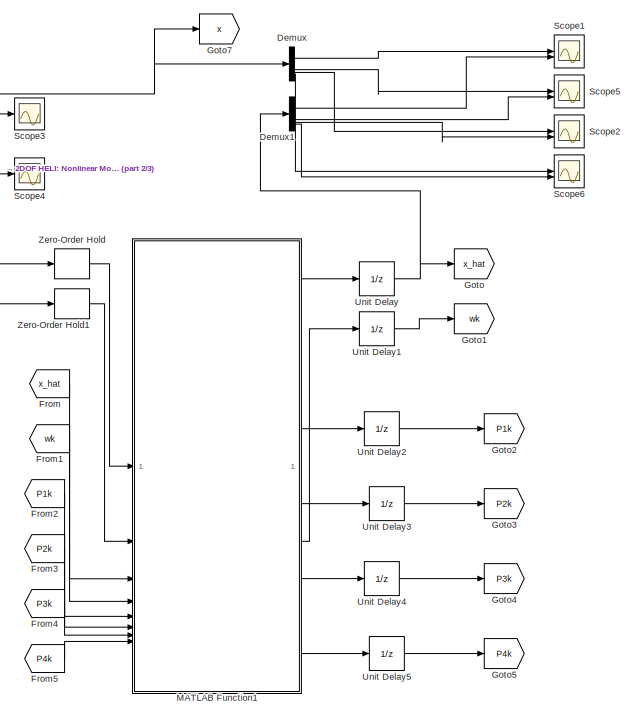
[diagram: root canvas - part 1/3, center side, full height]
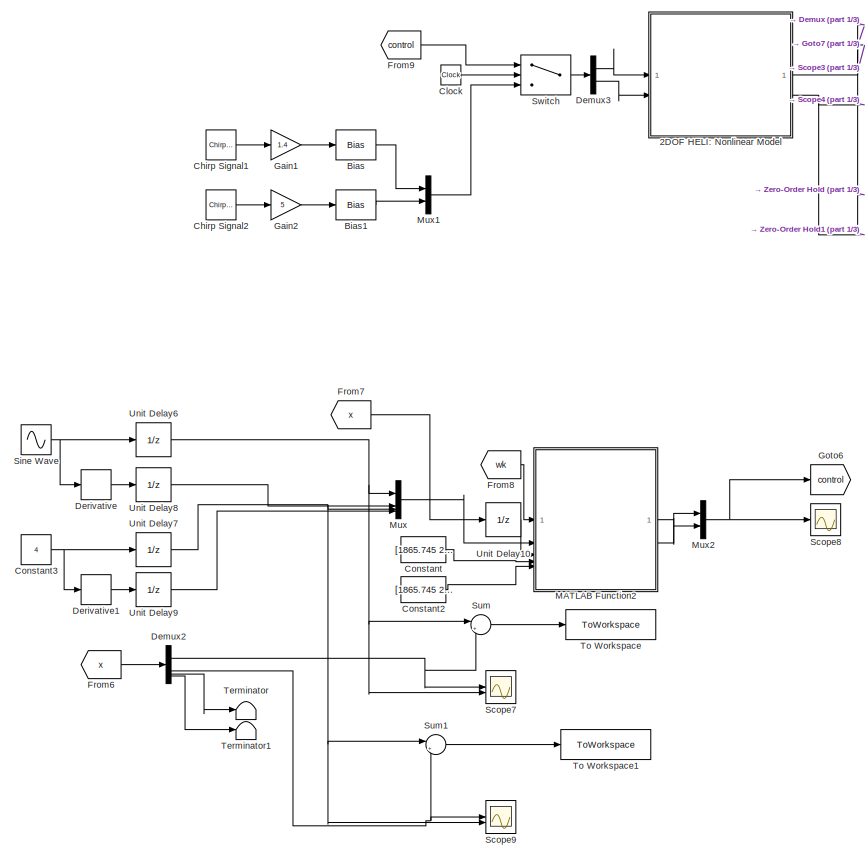
[diagram: root canvas - part 2/3, left side, full height]
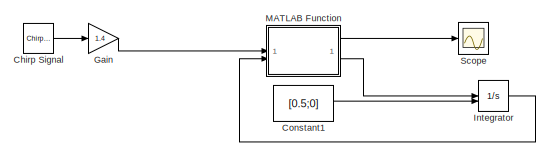
[diagram: root canvas - part 3/3, top right region]
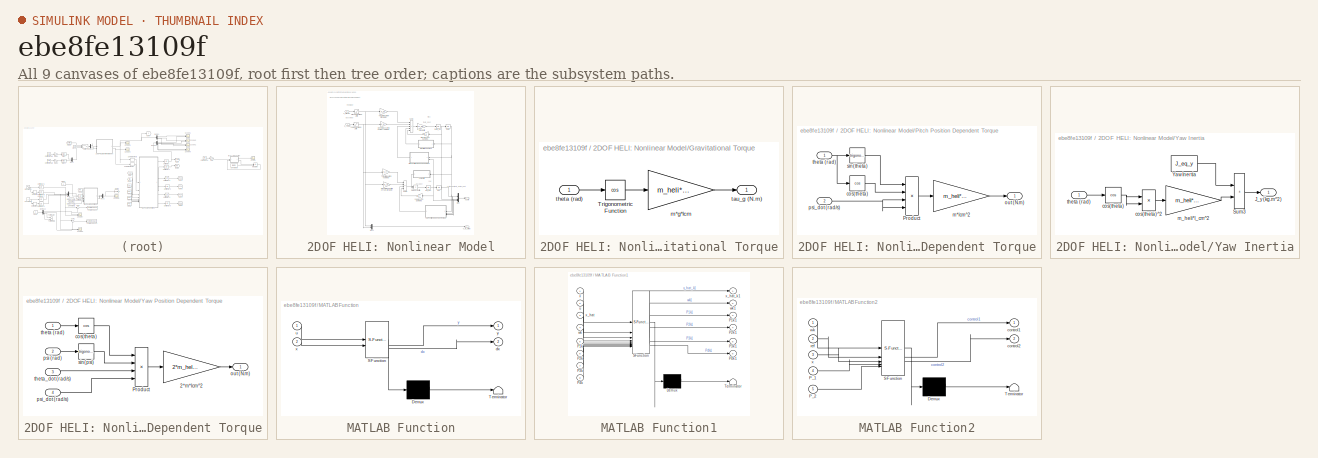
[diagram: thumbnail index - all 9 canvases of the model, root first then tree order]
MODEL slx_ebe8fe13109f
KIND model
CONFIG AbsTol = auto
CONFIG EnableMultiTasking = off
CONFIG FixedStep = 0.001
CONFIG MaxStep = auto
CONFIG MinStep = auto
CONFIG RelTol = 1e-3
CONFIG SampleTimeConstraint = Unconstrained
CONFIG SolverName = FixedStepAuto
CONFIG StartTime = 0.0
CONFIG StopTime = 10
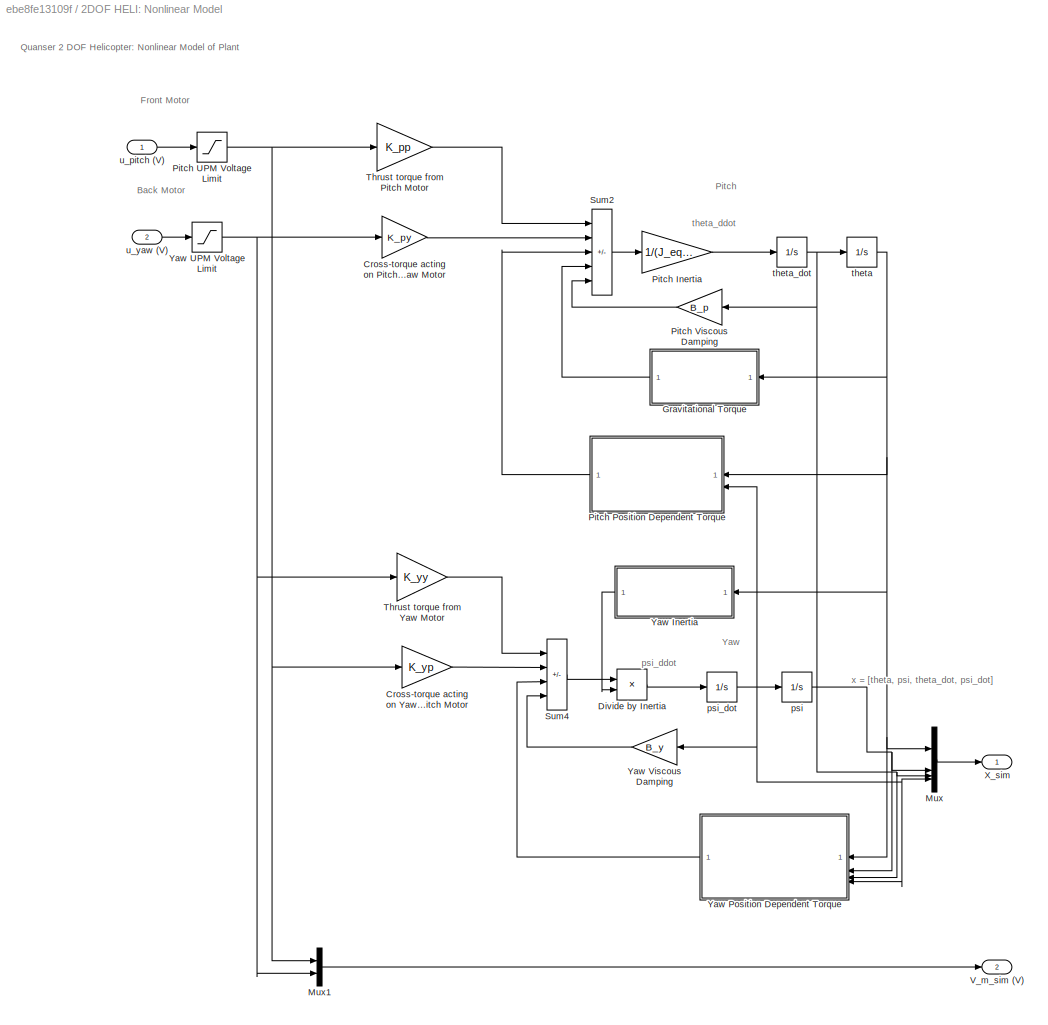
BLOCK [SubSystem] 2DOF HELI: Nonlinear Model
BLOCK [Gain] 2DOF HELI: Nonlinear Model/Cross-torque acting on Pitch from Yaw Motor
  Gain = K_py
BLOCK [Gain] 2DOF HELI: Nonlinear Model/Cross-torque acting on Yaw from Pitch Motor
  Gain = K_yp
BLOCK [Product] 2DOF HELI: Nonlinear Model/Divide by Inertia
  Inputs = */
BLOCK [SubSystem] 2DOF HELI: Nonlinear Model/Gravitational Torque
BLOCK [Trigonometry] 2DOF HELI: Nonlinear Model/Gravitational Torque/Trigonometric Function
  Operator = cos
  OutputSignalType = real
BLOCK [Gain] 2DOF HELI: Nonlinear Model/Gravitational Torque/m*g*lcm
  Gain = m_heli*g*l_cm
BLOCK [Outport] 2DOF HELI: Nonlinear Model/Gravitational Torque/tau_g (N.m)
BLOCK [Inport] 2DOF HELI: Nonlinear Model/Gravitational Torque/theta (rad)
BLOCK [Mux] 2DOF HELI: Nonlinear Model/Mux
  DisplayOption = bar
BLOCK [Mux] 2DOF HELI: Nonlinear Model/Mux1
  DisplayOption = bar
  Inputs = 2
BLOCK [Gain] 2DOF HELI: Nonlinear Model/Pitch Inertia
  Gain = 1/(J_eq_p+m_heli*l_cm^2)
BLOCK [SubSystem] 2DOF HELI: Nonlinear Model/Pitch Position Dependent Torque
  AncestorBlock = heli_2d_lib/2DOF Helicopter:\nNonlinear Model/Yaw Nonlinear Element
BLOCK [Product] 2DOF HELI: Nonlinear Model/Pitch Position Dependent Torque/Product
  Inputs = 4
  RndMeth = Zero
BLOCK [Trigonometry] 2DOF HELI: Nonlinear Model/Pitch Position Dependent Torque/cos(theta)
  Operator = cos
  OutputSignalType = real
BLOCK [Gain] 2DOF HELI: Nonlinear Model/Pitch Position Dependent Torque/m*lcm^2
  Gain = m_heli*l_cm^2
BLOCK [Outport] 2DOF HELI: Nonlinear Model/Pitch Position Dependent Torque/out (N.m)
BLOCK [Inport] 2DOF HELI: Nonlinear Model/Pitch Position Dependent Torque/psi_dot (rad//s)
  Port = 2
BLOCK [Trigonometry] 2DOF HELI: Nonlinear Model/Pitch Position Dependent Torque/sin(theta)
  OutputSignalType = real
BLOCK [Inport] 2DOF HELI: Nonlinear Model/Pitch Position Dependent Torque/theta (rad)
BLOCK [Saturate] 2DOF HELI: Nonlinear Model/Pitch UPM Voltage Limit
  LowerLimit = - VMAX_UPM_P
  UpperLimit = VMAX_UPM_P
BLOCK [Gain] 2DOF HELI: Nonlinear Model/Pitch Viscous Damping
  Gain = B_p
BLOCK [Sum] 2DOF HELI: Nonlinear Model/Sum2
  IconShape = rectangular
  Inputs = ++---
BLOCK [Sum] 2DOF HELI: Nonlinear Model/Sum4
  IconShape = rectangular
  Inputs = +++-
BLOCK [Gain] 2DOF HELI: Nonlinear Model/Thrust torque from Pitch Motor
  Gain = K_pp
BLOCK [Gain] 2DOF HELI: Nonlinear Model/Thrust torque from Yaw Motor
  Gain = K_yy
BLOCK [Outport] 2DOF HELI: Nonlinear Model/V_m_sim (V)
  Port = 2
BLOCK [Outport] 2DOF HELI: Nonlinear Model/X_sim
BLOCK [SubSystem] 2DOF HELI: Nonlinear Model/Yaw Inertia
BLOCK [Outport] 2DOF HELI: Nonlinear Model/Yaw Inertia/J_y (kg.m^2)
BLOCK [Sum] 2DOF HELI: Nonlinear Model/Yaw Inertia/Sum3
  IconShape = rectangular
BLOCK [Constant] 2DOF HELI: Nonlinear Model/Yaw Inertia/Yaw Inertia
  Value = J_eq_y
BLOCK [Trigonometry] 2DOF HELI: Nonlinear Model/Yaw Inertia/cos(theta)
  Operator = cos
  OutputSignalType = real
BLOCK [Product] 2DOF HELI: Nonlinear Model/Yaw Inertia/cos(theta)^2
  RndMeth = Zero
BLOCK [Gain] 2DOF HELI: Nonlinear Model/Yaw Inertia/m_heli*l_cm^2
  Gain = m_heli*l_cm^2
BLOCK [Inport] 2DOF HELI: Nonlinear Model/Yaw Inertia/theta (rad)
BLOCK [SubSystem] 2DOF HELI: Nonlinear Model/Yaw Position Dependent Torque
BLOCK [Gain] 2DOF HELI: Nonlinear Model/Yaw Position Dependent Torque/2*m*lcm^2
  Gain = 2*m_heli*l_cm^2
BLOCK [Product] 2DOF HELI: Nonlinear Model/Yaw Position Dependent Torque/Product
  Inputs = 4
  RndMeth = Zero
BLOCK [Trigonometry] 2DOF HELI: Nonlinear Model/Yaw Position Dependent Torque/cos(theta)
  Operator = cos
  OutputSignalType = real
BLOCK [Outport] 2DOF HELI: Nonlinear Model/Yaw Position Dependent Torque/out (N.m)
BLOCK [Inport] 2DOF HELI: Nonlinear Model/Yaw Position Dependent Torque/psi (rad)
  Port = 2
BLOCK [Inport] 2DOF HELI: Nonlinear Model/Yaw Position Dependent Torque/psi_dot (rad//s)
  Port = 4
BLOCK [Trigonometry] 2DOF HELI: Nonlinear Model/Yaw Position Dependent Torque/sin(psi)
  OutputSignalType = real
BLOCK [Inport] 2DOF HELI: Nonlinear Model/Yaw Position Dependent Torque/theta (rad)
BLOCK [Inport] 2DOF HELI: Nonlinear Model/Yaw Position Dependent Torque/theta_dot (rad//s)
  Port = 3
BLOCK [Saturate] 2DOF HELI: Nonlinear Model/Yaw UPM Voltage Limit
  LowerLimit = - VMAX_UPM_Y
  UpperLimit = VMAX_UPM_Y
BLOCK [Gain] 2DOF HELI: Nonlinear Model/Yaw Viscous Damping
  Gain = B_y
BLOCK [Integrator] 2DOF HELI: Nonlinear Model/psi
BLOCK [Integrator] 2DOF HELI: Nonlinear Model/psi_dot
BLOCK [Integrator] 2DOF HELI: Nonlinear Model/theta
  InitialCondition = theta_0
  LimitOutput = on
  LowerSaturationLimit = -40.5*pi/180
  UpperSaturationLimit = 40.5*pi/180
BLOCK [Integrator] 2DOF HELI: Nonlinear Model/theta_dot
BLOCK [Inport] 2DOF HELI: Nonlinear Model/u_pitch (V)
BLOCK [Inport] 2DOF HELI: Nonlinear Model/u_yaw (V)
  Port = 2
BLOCK [Bias] Bias
  Bias = 11.5
  SaturateOnIntegerOverflow = off
BLOCK [Bias] Bias1
  Bias = -3.5
  SaturateOnIntegerOverflow = off
BLOCK [Reference] Chirp Signal  REF=simulink/Sources/Chirp Signal
  Commented = on
  SourceBlock = simulink/Sources/Chirp Signal
  SourceType = chirp
BLOCK [Reference] Chirp Signal1  REF=simulink/Sources/Chirp Signal
  SourceBlock = simulink/Sources/Chirp Signal
  SourceType = chirp
BLOCK [Reference] Chirp Signal2  REF=simulink/Sources/Chirp Signal
  SourceBlock = simulink/Sources/Chirp Signal
  SourceType = chirp
BLOCK [Clock] Clock
BLOCK [Constant] Constant
  Value = [1865.745 212.083;212.083 29.79]
BLOCK [Constant] Constant1
  Commented = on
  Value = [0.5;0]
BLOCK [Constant] Constant2
  Value = [1865.745 212.083;212.083 29.79]
BLOCK [Constant] Constant3
  Value = 4
BLOCK [Demux] Demux
BLOCK [Demux] Demux1
BLOCK [Demux] Demux2
BLOCK [Demux] Demux3
  Outputs = 2
BLOCK [Derivative] Derivative
BLOCK [Derivative] Derivative1
BLOCK [From] From
  GotoTag = x_hat
BLOCK [From] From1
  GotoTag = wk
BLOCK [From] From2
  GotoTag = P1k
BLOCK [From] From3
  GotoTag = P2k
BLOCK [From] From4
  GotoTag = P3k
BLOCK [From] From5
  GotoTag = P4k
BLOCK [From] From6
  GotoTag = x
BLOCK [From] From7
  GotoTag = x
BLOCK [From] From8
  GotoTag = wk
BLOCK [From] From9
  GotoTag = control
BLOCK [Gain] Gain
  Commented = on
  Gain = 1.4
BLOCK [Gain] Gain1
  Gain = 1.4
BLOCK [Gain] Gain2
  Gain = 5
BLOCK [Goto] Goto
  GotoTag = x_hat
BLOCK [Goto] Goto1
  GotoTag = wk
BLOCK [Goto] Goto2
  GotoTag = P1k
BLOCK [Goto] Goto3
  GotoTag = P2k
BLOCK [Goto] Goto4
  GotoTag = P3k
BLOCK [Goto] Goto5
  GotoTag = P4k
BLOCK [Goto] Goto6
  GotoTag = control
BLOCK [Goto] Goto7
  GotoTag = x
BLOCK [Integrator] Integrator
  Commented = on
  InitialConditionSource = external
BLOCK [SubSystem] MATLAB Function
  Commented = on
  ErrorFcn = Stateflow.Translate.translate
  PermitHierarchicalResolution = ExplicitOnly
  SFBlockType = MATLAB Function
  TreatAsAtomicUnit = on
BLOCK [Demux] MATLAB Function/ Demux 
  Outputs = 1
BLOCK [S-Function] MATLAB Function/ SFunction 
  EnableBusSupport = on
  FunctionName = sf_sfun
  PortCounts = [2 3]
  SFcnIsStateOwnerBlock = off
  SFunctionDeploymentMode = off
  Tag = Stateflow S-Function 2
BLOCK [Terminator] MATLAB Function/ Terminator 
BLOCK [Outport] MATLAB Function/dx
  Port = 2
BLOCK [Inport] MATLAB Function/u
BLOCK [Inport] MATLAB Function/x
  Port = 2
BLOCK [Outport] MATLAB Function/y
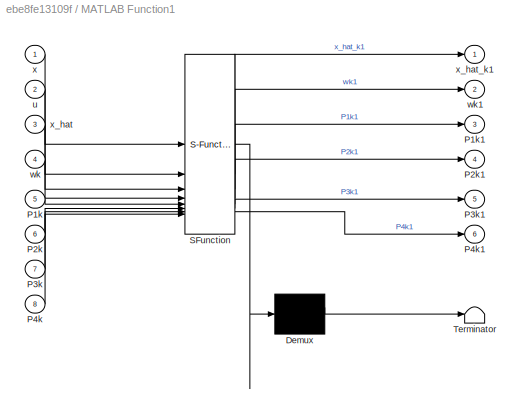
BLOCK [SubSystem] MATLAB Function1
  ErrorFcn = Stateflow.Translate.translate
  PermitHierarchicalResolution = ExplicitOnly
  SFBlockType = MATLAB Function
  TreatAsAtomicUnit = on
BLOCK [Demux] MATLAB Function1/ Demux 
  Outputs = 1
BLOCK [S-Function] MATLAB Function1/ SFunction 
  EnableBusSupport = on
  FunctionName = sf_sfun
  PortCounts = [8 7]
  SFcnIsStateOwnerBlock = off
  SFunctionDeploymentMode = off
  Tag = Stateflow S-Function 1
BLOCK [Terminator] MATLAB Function1/ Terminator 
BLOCK [Inport] MATLAB Function1/P1k
  Port = 5
BLOCK [Outport] MATLAB Function1/P1k1
  Port = 3
BLOCK [Inport] MATLAB Function1/P2k
  Port = 6
BLOCK [Outport] MATLAB Function1/P2k1
  Port = 4
BLOCK [Inport] MATLAB Function1/P3k
  Port = 7
BLOCK [Outport] MATLAB Function1/P3k1
  Port = 5
BLOCK [Inport] MATLAB Function1/P4k
  Port = 8
BLOCK [Outport] MATLAB Function1/P4k1
  Port = 6
BLOCK [Inport] MATLAB Function1/u
  Port = 2
BLOCK [Inport] MATLAB Function1/wk
  Port = 4
BLOCK [Outport] MATLAB Function1/wk1
  Port = 2
BLOCK [Inport] MATLAB Function1/x
BLOCK [Inport] MATLAB Function1/x_hat
  Port = 3
BLOCK [Outport] MATLAB Function1/x_hat_k1
BLOCK [SubSystem] MATLAB Function2
  ErrorFcn = Stateflow.Translate.translate
  PermitHierarchicalResolution = ExplicitOnly
  SFBlockType = MATLAB Function
  TreatAsAtomicUnit = on
BLOCK [Demux] MATLAB Function2/ Demux 
  Outputs = 1
BLOCK [S-Function] MATLAB Function2/ SFunction 
  EnableBusSupport = on
  FunctionName = sf_sfun
  PortCounts = [5 3]
  SFcnIsStateOwnerBlock = off
  SFunctionDeploymentMode = off
  Tag = Stateflow S-Function 3
BLOCK [Terminator] MATLAB Function2/ Terminator 
BLOCK [Inport] MATLAB Function2/P_1
  Port = 4
BLOCK [Inport] MATLAB Function2/P_2
  Port = 5
BLOCK [Outport] MATLAB Function2/control1
BLOCK [Outport] MATLAB Function2/control2
  Port = 2
BLOCK [Inport] MATLAB Function2/ref
  Port = 2
BLOCK [Inport] MATLAB Function2/wk
BLOCK [Inport] MATLAB Function2/x
  Port = 3
BLOCK [Mux] Mux
  DisplayOption = bar
BLOCK [Mux] Mux1
  DisplayOption = bar
  Inputs = 2
BLOCK [Mux] Mux2
  DisplayOption = bar
  Inputs = 2
BLOCK [Scope] Scope
  Commented = on
  Floating = off
  NumInputPorts = 1
  ScopeSpecificationString = Simulink.scopes.TimeScopeBlockCfg('CurrentConfiguration', extmgr.ConfigurationSet(extmgr.Configuration('Core','General UI',true),extmgr.Configuration('Core','Source UI',true),extmgr.Configuration('Sources','WiredSimulink',true),extmgr.Configuration('Visuals','Time Domain',true,'SerializedDisplays',{struct('MinYLimReal','-0.30166','MaxYLimReal','0.37994','YLabelReal','','MinYLimMag','0.00000','MaxY...<+1426ch>
BLOCK [Scope] Scope1
  Floating = off
  NumInputPorts = 2
  ScopeSpecificationString = Simulink.scopes.TimeScopeBlockCfg('CurrentConfiguration', extmgr.ConfigurationSet(extmgr.Configuration('Core','General UI',true),extmgr.Configuration('Core','Source UI',true),extmgr.Configuration('Sources','WiredSimulink',true,'DataLoggingVariableName','ScopeData1'),extmgr.Configuration('Visuals','Time Domain',true,'SerializedDisplays',{struct('MinYLimReal','-1.13272','MaxYLimReal','0.12586','YLab...<+1499ch>
BLOCK [Scope] Scope2
  Floating = off
  NumInputPorts = 2
  ScopeSpecificationString = Simulink.scopes.TimeScopeBlockCfg('CurrentConfiguration', extmgr.ConfigurationSet(extmgr.Configuration('Core','General UI',true),extmgr.Configuration('Core','Source UI',true),extmgr.Configuration('Sources','WiredSimulink',true,'DataLoggingVariableName','ScopeData2'),extmgr.Configuration('Visuals','Time Domain',true,'SerializedDisplays',{struct('MinYLimReal','-2.01215','MaxYLimReal','2.02796','YLab...<+1539ch>
BLOCK [Scope] Scope3
  Floating = off
  NumInputPorts = 1
  ScopeSpecificationString = Simulink.scopes.TimeScopeBlockCfg('CurrentConfiguration', extmgr.ConfigurationSet(extmgr.Configuration('Core','General UI',true),extmgr.Configuration('Core','Source UI',true),extmgr.Configuration('Sources','WiredSimulink',true,'DataLoggingVariableName','ScopeData1'),extmgr.Configuration('Visuals','Time Domain',true,'SerializedDisplays',{struct('MinYLimReal','-2.35436','MaxYLimReal','5.10786','YLab...<+1577ch>
BLOCK [Scope] Scope4
  Floating = off
  NumInputPorts = 1
  ScopeSpecificationString = Simulink.scopes.TimeScopeBlockCfg('CurrentConfiguration', extmgr.ConfigurationSet(extmgr.Configuration('Core','General UI',true),extmgr.Configuration('Core','Source UI',true),extmgr.Configuration('Sources','WiredSimulink',true,'DataLoggingVariableName','ScopeData2'),extmgr.Configuration('Visuals','Time Domain',true,'SerializedDisplays',{struct('MinYLimReal','-5.8125','MaxYLimReal','17.3125','YLabe...<+1509ch>
BLOCK [Scope] Scope5
  Floating = off
  NumInputPorts = 2
  ScopeSpecificationString = Simulink.scopes.TimeScopeBlockCfg('CurrentConfiguration', extmgr.ConfigurationSet(extmgr.Configuration('Core','General UI',true),extmgr.Configuration('Core','Source UI',true),extmgr.Configuration('Sources','WiredSimulink',true,'DataLoggingVariableName','ScopeData3'),extmgr.Configuration('Visuals','Time Domain',true,'SerializedDisplays',{struct('MinYLimReal','-0.54521','MaxYLimReal','4.90685','YLab...<+1497ch>
BLOCK [Scope] Scope6
  Floating = off
  NumInputPorts = 2
  ScopeSpecificationString = Simulink.scopes.TimeScopeBlockCfg('CurrentConfiguration', extmgr.ConfigurationSet(extmgr.Configuration('Core','General UI',true),extmgr.Configuration('Core','Source UI',true),extmgr.Configuration('Sources','WiredSimulink',true,'DataLoggingVariableName','ScopeData4'),extmgr.Configuration('Visuals','Time Domain',true,'SerializedDisplays',{struct('MinYLimReal','-1.45251','MaxYLimReal','1.4612','YLabe...<+1535ch>
BLOCK [Scope] Scope7
  Floating = off
  NumInputPorts = 2
  ScopeSpecificationString = Simulink.scopes.TimeScopeBlockCfg('CurrentConfiguration', extmgr.ConfigurationSet(extmgr.Configuration('Core','General UI',true),extmgr.Configuration('Core','Source UI',true),extmgr.Configuration('Sources','WiredSimulink',true,'DataLoggingVariableName','ScopeData1'),extmgr.Configuration('Visuals','Time Domain',true,'SerializedDisplays',{struct('MinYLimReal','-0.85772','MaxYLimReal','0.65086','YLab...<+1470ch>
BLOCK [Scope] Scope8
  Floating = off
  NumInputPorts = 1
  ScopeSpecificationString = Simulink.scopes.TimeScopeBlockCfg('CurrentConfiguration', extmgr.ConfigurationSet(extmgr.Configuration('Core','General UI',true),extmgr.Configuration('Core','Source UI',true),extmgr.Configuration('Sources','WiredSimulink',true,'DataLoggingVariableName','ScopeData2'),extmgr.Configuration('Visuals','Time Domain',true,'SerializedDisplays',{struct('MinYLimReal','-6.48045','MaxYLimReal','31.78389','YLa...<+1505ch>
BLOCK [Scope] Scope9
  Floating = off
  NumInputPorts = 2
  ScopeSpecificationString = Simulink.scopes.TimeScopeBlockCfg('CurrentConfiguration', extmgr.ConfigurationSet(extmgr.Configuration('Core','General UI',true),extmgr.Configuration('Core','Source UI',true),extmgr.Configuration('Sources','WiredSimulink',true,'DataLoggingVariableName','ScopeData1'),extmgr.Configuration('Visuals','Time Domain',true,'SerializedDisplays',{struct('MinYLimReal','-0.54521','MaxYLimReal','4.90685','YLab...<+1470ch>
BLOCK [Sin] Sine Wave
  Amplitude = 0.5
  SampleTime = 0
BLOCK [Sum] Sum
  Inputs = |+-
BLOCK [Sum] Sum1
  Inputs = |+-
BLOCK [Switch] Switch
  Criteria = u2 > Threshold
  InputSameDT = off
  SaturateOnIntegerOverflow = off
  Threshold = 0.1
BLOCK [Terminator] Terminator
BLOCK [Terminator] Terminator1
BLOCK [ToWorkspace] To Workspace
  FixptAsFi = on
  MaxDataPoints = inf
  SampleTime = -1
  SaveFormat = Timeseries
  VariableName = track_error_pitch
BLOCK [ToWorkspace] To Workspace1
  FixptAsFi = on
  MaxDataPoints = inf
  SampleTime = -1
  SaveFormat = Timeseries
  VariableName = track_error_yaw
BLOCK [UnitDelay] Unit Delay
  HasFrameUpgradeWarning = on
  SampleTime = -1
BLOCK [UnitDelay] Unit Delay1
  HasFrameUpgradeWarning = on
  InitialCondition = [rand(1,8)]
  SampleTime = -1
BLOCK [UnitDelay] Unit Delay10
  HasFrameUpgradeWarning = on
  InitialCondition = [0;0;0;0]
  SampleTime = -1
BLOCK [UnitDelay] Unit Delay2
  HasFrameUpgradeWarning = on
  InitialCondition = eye(2)*50000
  SampleTime = -1
BLOCK [UnitDelay] Unit Delay3
  HasFrameUpgradeWarning = on
  InitialCondition = eye(2)*50000
  SampleTime = -1
BLOCK [UnitDelay] Unit Delay4
  HasFrameUpgradeWarning = on
  InitialCondition = eye(2)*50000
  SampleTime = -1
BLOCK [UnitDelay] Unit Delay5
  HasFrameUpgradeWarning = on
  InitialCondition = eye(2)*50000
  SampleTime = -1
BLOCK [UnitDelay] Unit Delay6
  HasFrameUpgradeWarning = on
  SampleTime = -1
BLOCK [UnitDelay] Unit Delay7
  HasFrameUpgradeWarning = on
  SampleTime = -1
BLOCK [UnitDelay] Unit Delay8
  HasFrameUpgradeWarning = on
  SampleTime = -1
BLOCK [UnitDelay] Unit Delay9
  HasFrameUpgradeWarning = on
  SampleTime = -1
BLOCK [ZeroOrderHold] Zero-Order Hold
  SampleTime = -1
BLOCK [ZeroOrderHold] Zero-Order Hold1
  SampleTime = -1
ANNOTATION 2DOF HELI: Nonlinear Model: Back Motor
ANNOTATION 2DOF HELI: Nonlinear Model: Front Motor
ANNOTATION 2DOF HELI: Nonlinear Model: Pitch
ANNOTATION 2DOF HELI: Nonlinear Model: Quanser 2 DOF Helicopter: Nonlinear Model of Plant
ANNOTATION 2DOF HELI: Nonlinear Model: Yaw
ANNOTATION 2DOF HELI: Nonlinear Model: psi_ddot
ANNOTATION 2DOF HELI: Nonlinear Model: theta_ddot
ANNOTATION 2DOF HELI: Nonlinear Model: x = [theta, psi, theta_dot, psi_dot]
LINE 2DOF HELI: Nonlinear Model/Cross-torque acting on Pitch from Yaw Motor:1 -> 2DOF HELI: Nonlinear Model/Sum2:2
LINE 2DOF HELI: Nonlinear Model/Cross-torque acting on Yaw from Pitch Motor:1 -> 2DOF HELI: Nonlinear Model/Sum4:2
LINE 2DOF HELI: Nonlinear Model/Divide by Inertia:1 -> 2DOF HELI: Nonlinear Model/psi_dot:1
LINE 2DOF HELI: Nonlinear Model/Gravitational Torque/Trigonometric Function:1 -> 2DOF HELI: Nonlinear Model/Gravitational Torque/m*g*lcm:1
LINE 2DOF HELI: Nonlinear Model/Gravitational Torque/m*g*lcm:1 -> 2DOF HELI: Nonlinear Model/Gravitational Torque/tau_g (N.m):1
LINE 2DOF HELI: Nonlinear Model/Gravitational Torque/theta (rad):1 -> 2DOF HELI: Nonlinear Model/Gravitational Torque/Trigonometric Function:1
LINE 2DOF HELI: Nonlinear Model/Gravitational Torque:1 -> 2DOF HELI: Nonlinear Model/Sum2:4
LINE 2DOF HELI: Nonlinear Model/Mux1:1 -> 2DOF HELI: Nonlinear Model/V_m_sim (V):1
LINE 2DOF HELI: Nonlinear Model/Mux:1 -> 2DOF HELI: Nonlinear Model/X_sim:1
LINE 2DOF HELI: Nonlinear Model/Pitch Inertia:1 -> 2DOF HELI: Nonlinear Model/theta_dot:1
LINE 2DOF HELI: Nonlinear Model/Pitch Position Dependent Torque:1 -> 2DOF HELI: Nonlinear Model/Sum2:3
NET 2DOF HELI: Nonlinear Model/Pitch UPM Voltage Limit:1 -> 2DOF HELI: Nonlinear Model/Cross-torque acting on Yaw from Pitch Motor:1, 2DOF HELI: Nonlinear Model/Mux1:1, 2DOF HELI: Nonlinear Model/Thrust torque from Pitch Motor:1
LINE 2DOF HELI: Nonlinear Model/Pitch Viscous Damping:1 -> 2DOF HELI: Nonlinear Model/Sum2:5
LINE 2DOF HELI: Nonlinear Model/Sum2:1 -> 2DOF HELI: Nonlinear Model/Pitch Inertia:1
LINE 2DOF HELI: Nonlinear Model/Sum4:1 -> 2DOF HELI: Nonlinear Model/Divide by Inertia:1
LINE 2DOF HELI: Nonlinear Model/Thrust torque from Pitch Motor:1 -> 2DOF HELI: Nonlinear Model/Sum2:1
LINE 2DOF HELI: Nonlinear Model/Thrust torque from Yaw Motor:1 -> 2DOF HELI: Nonlinear Model/Sum4:1
LINE 2DOF HELI: Nonlinear Model/Yaw Inertia/Sum3:1 -> 2DOF HELI: Nonlinear Model/Yaw Inertia/J_y (kg.m^2):1
LINE 2DOF HELI: Nonlinear Model/Yaw Inertia/Yaw Inertia:1 -> 2DOF HELI: Nonlinear Model/Yaw Inertia/Sum3:1
NET 2DOF HELI: Nonlinear Model/Yaw Inertia/cos(theta):1 -> 2DOF HELI: Nonlinear Model/Yaw Inertia/cos(theta)^2:1, 2DOF HELI: Nonlinear Model/Yaw Inertia/cos(theta)^2:2
LINE 2DOF HELI: Nonlinear Model/Yaw Inertia/cos(theta)^2:1 -> 2DOF HELI: Nonlinear Model/Yaw Inertia/m_heli*l_cm^2:1
LINE 2DOF HELI: Nonlinear Model/Yaw Inertia/m_heli*l_cm^2:1 -> 2DOF HELI: Nonlinear Model/Yaw Inertia/Sum3:2
LINE 2DOF HELI: Nonlinear Model/Yaw Inertia/theta (rad):1 -> 2DOF HELI: Nonlinear Model/Yaw Inertia/cos(theta):1
LINE 2DOF HELI: Nonlinear Model/Yaw Inertia:1 -> 2DOF HELI: Nonlinear Model/Divide by Inertia:2
LINE 2DOF HELI: Nonlinear Model/Yaw Position Dependent Torque/2*m*lcm^2:1 -> 2DOF HELI: Nonlinear Model/Yaw Position Dependent Torque/out (N.m):1
LINE 2DOF HELI: Nonlinear Model/Yaw Position Dependent Torque/Product:1 -> 2DOF HELI: Nonlinear Model/Yaw Position Dependent Torque/2*m*lcm^2:1
LINE 2DOF HELI: Nonlinear Model/Yaw Position Dependent Torque/cos(theta):1 -> 2DOF HELI: Nonlinear Model/Yaw Position Dependent Torque/Product:1
LINE 2DOF HELI: Nonlinear Model/Yaw Position Dependent Torque/psi (rad):1 -> 2DOF HELI: Nonlinear Model/Yaw Position Dependent Torque/sin(psi):1
LINE 2DOF HELI: Nonlinear Model/Yaw Position Dependent Torque/psi_dot (rad//s):1 -> 2DOF HELI: Nonlinear Model/Yaw Position Dependent Torque/Product:4
LINE 2DOF HELI: Nonlinear Model/Yaw Position Dependent Torque/sin(psi):1 -> 2DOF HELI: Nonlinear Model/Yaw Position Dependent Torque/Product:2
LINE 2DOF HELI: Nonlinear Model/Yaw Position Dependent Torque/theta (rad):1 -> 2DOF HELI: Nonlinear Model/Yaw Position Dependent Torque/cos(theta):1
LINE 2DOF HELI: Nonlinear Model/Yaw Position Dependent Torque/theta_dot (rad//s):1 -> 2DOF HELI: Nonlinear Model/Yaw Position Dependent Torque/Product:3
LINE 2DOF HELI: Nonlinear Model/Yaw Position Dependent Torque:1 -> 2DOF HELI: Nonlinear Model/Sum4:3
NET 2DOF HELI: Nonlinear Model/Yaw UPM Voltage Limit:1 -> 2DOF HELI: Nonlinear Model/Cross-torque acting on Pitch from Yaw Motor:1, 2DOF HELI: Nonlinear Model/Mux1:2, 2DOF HELI: Nonlinear Model/Thrust torque from Yaw Motor:1
LINE 2DOF HELI: Nonlinear Model/Yaw Viscous Damping:1 -> 2DOF HELI: Nonlinear Model/Sum4:4
NET 2DOF HELI: Nonlinear Model/psi:1 -> 2DOF HELI: Nonlinear Model/Mux:2, 2DOF HELI: Nonlinear Model/Yaw Position Dependent Torque:2
NET 2DOF HELI: Nonlinear Model/psi_dot:1 -> 2DOF HELI: Nonlinear Model/Mux:4, 2DOF HELI: Nonlinear Model/Pitch Position Dependent Torque:2, 2DOF HELI: Nonlinear Model/Yaw Position Dependent Torque:4, 2DOF HELI: Nonlinear Model/Yaw Viscous Damping:1, 2DOF HELI: Nonlinear Model/psi:1
NET 2DOF HELI: Nonlinear Model/theta:1 -> 2DOF HELI: Nonlinear Model/Gravitational Torque:1, 2DOF HELI: Nonlinear Model/Mux:1, 2DOF HELI: Nonlinear Model/Pitch Position Dependent Torque:1, 2DOF HELI: Nonlinear Model/Yaw Inertia:1, 2DOF HELI: Nonlinear Model/Yaw Position Dependent Torque:1
NET 2DOF HELI: Nonlinear Model/theta_dot:1 -> 2DOF HELI: Nonlinear Model/Mux:3, 2DOF HELI: Nonlinear Model/Pitch Viscous Damping:1, 2DOF HELI: Nonlinear Model/Yaw Position Dependent Torque:3, 2DOF HELI: Nonlinear Model/theta:1
LINE 2DOF HELI: Nonlinear Model/u_pitch (V):1 -> 2DOF HELI: Nonlinear Model/Pitch UPM Voltage Limit:1
LINE 2DOF HELI: Nonlinear Model/u_yaw (V):1 -> 2DOF HELI: Nonlinear Model/Yaw UPM Voltage Limit:1
NET 2DOF HELI: Nonlinear Model:1 -> Demux:1, Goto7:1, Scope3:1, Zero-Order Hold:1
NET 2DOF HELI: Nonlinear Model:2 -> Scope4:1, Zero-Order Hold1:1
LINE Bias1:1 -> Mux1:2
LINE Bias:1 -> Mux1:1
LINE Chirp Signal1:1 -> Gain1:1
LINE Chirp Signal2:1 -> Gain2:1
LINE Chirp Signal:1 -> Gain:1
LINE Clock:1 -> Switch:2
LINE Constant1:1 -> Integrator:2
LINE Constant2:1 -> MATLAB Function2:5
NET Constant3:1 -> Derivative1:1, Unit Delay7:1
LINE Constant:1 -> MATLAB Function2:4
LINE Demux1:1 -> Scope1:2
LINE Demux1:2 -> Scope5:2
LINE Demux1:3 -> Scope2:2
LINE Demux1:4 -> Scope6:2
NET Demux2:1 -> Scope7:1, Sum:2
NET Demux2:2 -> Scope9:1, Sum1:2
LINE Demux2:3 -> Terminator:1
LINE Demux2:4 -> Terminator1:1
LINE Demux3:1 -> 2DOF HELI: Nonlinear Model:1
LINE Demux3:2 -> 2DOF HELI: Nonlinear Model:2
LINE Demux:1 -> Scope1:1
LINE Demux:2 -> Scope5:1
LINE Demux:3 -> Scope2:1
LINE Demux:4 -> Scope6:1
LINE Derivative1:1 -> Unit Delay9:1
LINE Derivative:1 -> Unit Delay8:1
LINE From1:1 -> MATLAB Function1:4
LINE From2:1 -> MATLAB Function1:5
LINE From3:1 -> MATLAB Function1:6
LINE From4:1 -> MATLAB Function1:7
LINE From5:1 -> MATLAB Function1:8
LINE From6:1 -> Demux2:1
LINE From7:1 -> Unit Delay10:1
LINE From8:1 -> MATLAB Function2:1
LINE From9:1 -> Switch:1
LINE From:1 -> MATLAB Function1:3
LINE Gain1:1 -> Bias:1
LINE Gain2:1 -> Bias1:1
LINE Gain:1 -> MATLAB Function:1
LINE Integrator:1 -> MATLAB Function:2
LINE MATLAB Function1:1 -> Unit Delay:1
LINE MATLAB Function1:2 -> Unit Delay1:1
LINE MATLAB Function1:3 -> Unit Delay2:1
LINE MATLAB Function1:4 -> Unit Delay3:1
LINE MATLAB Function1:5 -> Unit Delay4:1
LINE MATLAB Function1:6 -> Unit Delay5:1
LINE MATLAB Function2:1 -> Mux2:1
LINE MATLAB Function2:2 -> Mux2:2
LINE MATLAB Function:1 -> Scope:1
LINE MATLAB Function:2 -> Integrator:1
LINE Mux1:1 -> Switch:3
NET Mux2:1 -> Goto6:1, Scope8:1
LINE Mux:1 -> MATLAB Function2:2
NET Sine Wave:1 -> Derivative:1, Unit Delay6:1
LINE Sum1:1 -> To Workspace1:1
LINE Sum:1 -> To Workspace:1
LINE Switch:1 -> Demux3:1
LINE Unit Delay10:1 -> MATLAB Function2:3
LINE Unit Delay1:1 -> Goto1:1
LINE Unit Delay2:1 -> Goto2:1
LINE Unit Delay3:1 -> Goto3:1
LINE Unit Delay4:1 -> Goto4:1
LINE Unit Delay5:1 -> Goto5:1
NET Unit Delay6:1 -> Mux:1, Scope7:2, Sum:1
NET Unit Delay7:1 -> Mux:3, Scope9:2, Sum1:1
LINE Unit Delay8:1 -> Mux:2
LINE Unit Delay9:1 -> Mux:4
NET Unit Delay:1 -> Demux1:1, Goto:1
LINE Zero-Order Hold1:1 -> MATLAB Function1:2
LINE Zero-Order Hold:1 -> MATLAB Function1:1
note: NET lines group one-source signal fan-out (src -> all destinations, sorted); 1:1 wires keep LINE
CHART MATLAB Function1 states=1 transitions=1
  STATE_LABEL 'eML_blk_kernel()'
  STATE_LABEL 'SCRIPT:\nfunction [x_hat_k1,wk1,P1k1,P2k1,P3k1,P4k1] = fcn(x,u,x_hat,wk,P1k,P2k,P3k,P4k)\n\n%% Constant weights\n\nw_1=0.15;\n%w_2=0.1; %Revisar que valores podemos usar\n\n\n%% Neural states\n\nx_hat_k_1 = wk(1)*tanh(x(3)) +  wk(2)*tanh(x(1));\nx_hat_k_2 = wk(3)*tanh(x(4)) +  wk(4)*tanh(x(2));\n\nx_hat_k_3 = wk(5)*tanh(x(3)) +  wk(6)*tanh(x(1)) + w_1*u(1);\nx_hat_k_4 = wk(7)*tanh(x(4)) +  wk(8)*tanh(x(2)) + w_1...<+783ch>'
CHART MATLAB Function states=1 transitions=1
  STATE_LABEL 'eML_blk_kernel()'
  STATE_LABEL 'SCRIPT:\nfunction [y, dx] = fcn(u, x)\ng = 9.81;  \nl = 1;     \nm = 1;     \nb = 0.5;   \n\nx1 = x(1);  \nx2 = x(2);  \n\ndx1 = x2;\ndx2 = -(g/l)*sin(x1) - (b*l/(m*l^2))*x2 + u/(m*l^2);\n\ndx = [dx1; dx2];\n\ny = x1; \n\n'
CHART MATLAB Function2 states=1 transitions=1
  STATE_LABEL 'eML_blk_kernel()'
  STATE_LABEL "SCRIPT:\nfunction [control1, control2] = fcn(wk,ref,x,P_1,P_2)\n\n\n%% Constant weights\n\nw_1 = 0.015;\n\n\n%% Neural model\n\n\n%V1\nf1=[wk(1)*tanh(x(3)) +  wk(2)*tanh(x(1));wk(5)*tanh(x(3)) +  wk(6)*tanh(x(1))];\ng1=[0;w_1];\n\nf2=[wk(3)*tanh(x(4)) +  wk(4)*tanh(x(2));wk(7)*tanh(x(4)) +  wk(8)*tanh(x(2))]; \ng2=[0;w_1];\n\n\n%% Control law\n\n%Falta cambiar las P's [PSO] y checar ref\n\nR=1;\ncontrol1 = -1/2*(R+1/2*g1'...<+106ch>"
CHART  states=0 transitions=0
CHART  states=0 transitions=0
CHART  states=0 transitions=0
